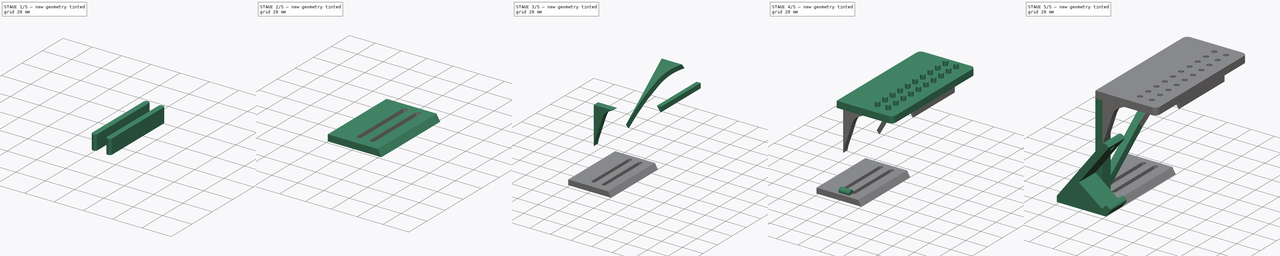
[diagram: build sequence overview — one tinted view per stage of 5, left to right]
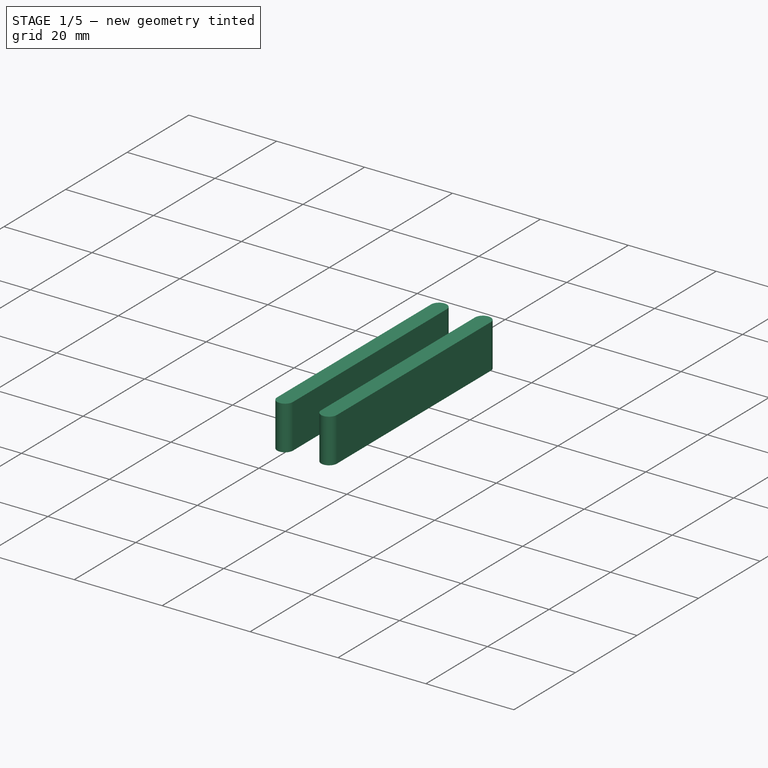
[diagram: stage 1 of 5 — iso view after this stage's code; geometry added in this stage tinted green]
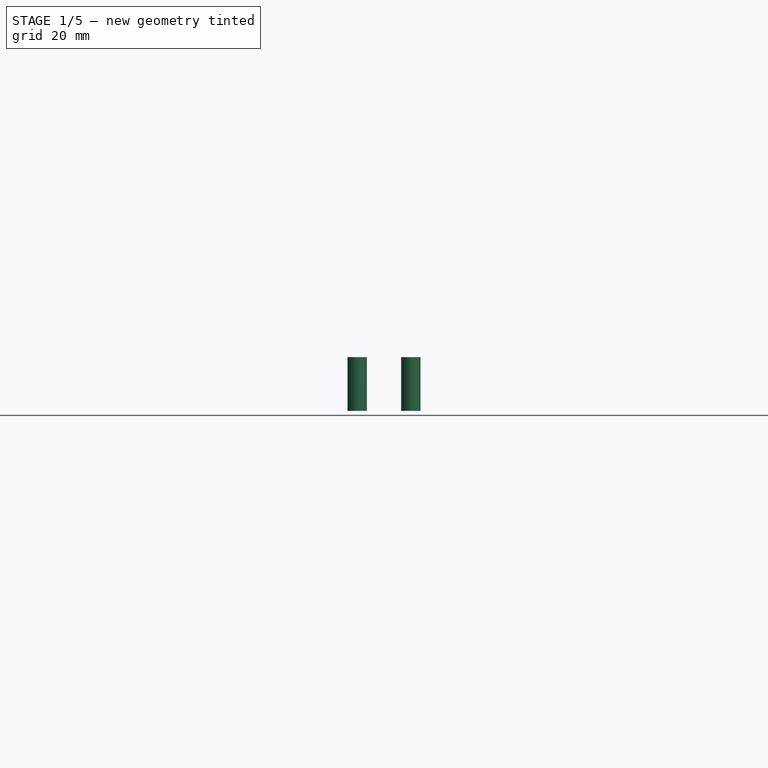
[diagram: stage 1 of 5 — front view after this stage's code; geometry added in this stage tinted green]
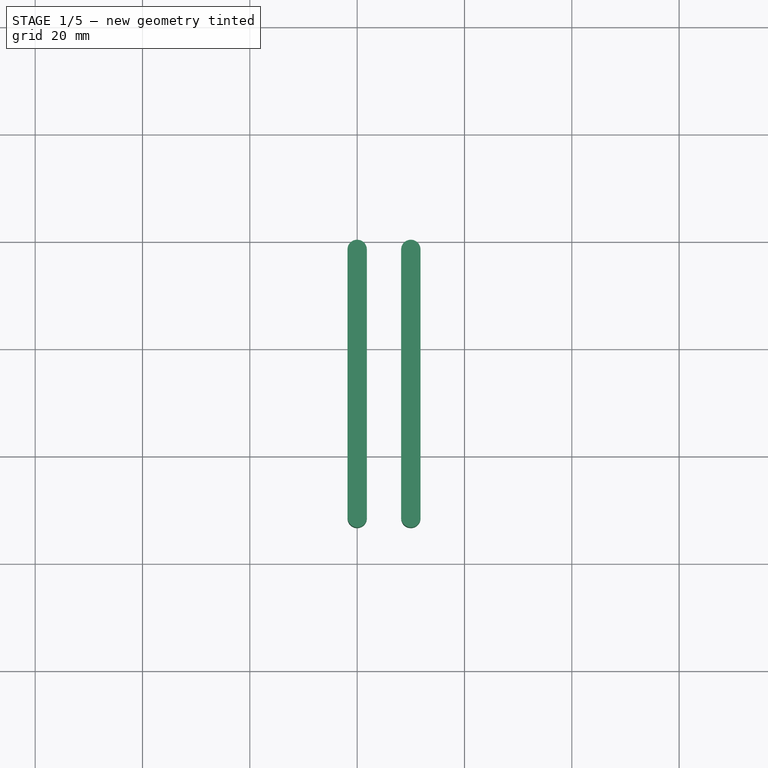
[diagram: stage 1 of 5 — top view after this stage's code; geometry added in this stage tinted green]
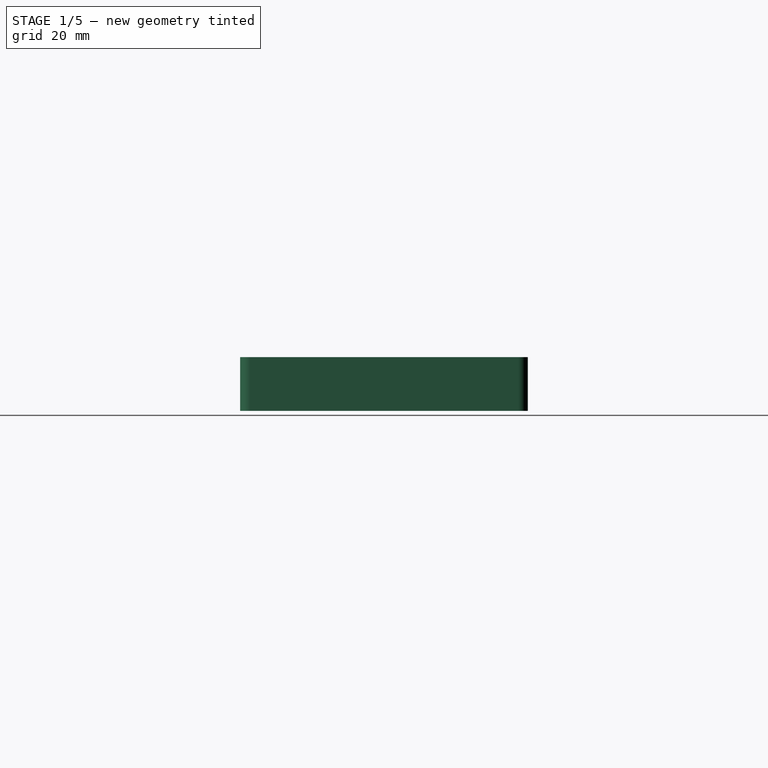
[diagram: stage 1 of 5 — right view after this stage's code; geometry added in this stage tinted green]
FCSTD DOCUMENT  (FreeCAD 0.20R29410 (Git))
Label: vesa_lamp_holder
License: All rights reserved
LicenseURL: http://en.wikipedia.org/wiki/All_rights_reserved
objects: Sketcher::SketchObject×6, Part::Cylinder×5, Part::MultiFuse×5, Part::Extrusion×5, Part::Box×3, Part::Cut×3, Part::Fillet×2, Part::FeaturePython×2, Spreadsheet::Sheet×1, PartDesign::Pad×1, App::Part×1
note: 31 computed .brp shape members not serialized (recipe doc carries the construction recipe); baked Part::Feature solids carry a one-line shape summary decoded from their .brp

FEATURE [App::Part] Part  label="vesa body"
  Group = -> [Cut001]
  Origin = -> Origin
  Placement = pos=(-21.6897,0,-82.381) rot=(0,1,0;6.17847rad)
FEATURE [Part::Cylinder] Cylinder003  label="Cylinder"
  Angle = 360
  AttacherType = Attacher::AttachEngine3D
  FirstAngle = 0
  Height = 10
  Radius = 1.8
  SecondAngle = 0
FEATURE [Part::Cylinder] Cylinder004
  Angle = 360
  AttacherType = Attacher::AttachEngine3D
  FirstAngle = 0
  Height = 10
  Placement = pos=(0,50,0) rot=(0,0,1;0rad)
  Radius = 1.8
  SecondAngle = 0
FEATURE [Part::Box] Box003  label="Cube"
  AttacherType = Attacher::AttachEngine3D
  Height = 10
  Length = 3.6
  Placement = pos=(-1.8,0,0) rot=(0,0,1;0rad)
  Width = 50
  expr: .Placement.Base.x = -Length / 2
FEATURE [Part::MultiFuse] Fusion004
  Shapes = -> [Cylinder003,Cylinder004,Box003]
FEATURE [Part::FeaturePython] Array001  # Draft array (typed FeaturePython)
  AlwaysSyncPlacement = false
  Angle = 360
  ArrayType = 0
  Axis = (0,0,1)
  Base = -> Fusion004
  Center = (0,0,0)
  Count = 2
  ExpandArray = false
  Fuse = false
  IntervalAxis = (0,0,0)
  IntervalX = (10,0,0)
  IntervalY = (0,100,0)
  IntervalZ = (0,0,100)
  NumberCircles = 3
  NumberPolar = 5
  NumberX = 2
  NumberY = 1
  NumberZ = 1
  Placement = pos=(0,8.5,0) rot=(0,0,1;0rad)
  PlacementList = 2 placements: [(0,0,0),(10,0,0)]
  RadialDistance = 50
  ScaleList = (2) [(1,1,1),(1,1,1)]
  Symmetry = 1
  TangentialDistance = 25
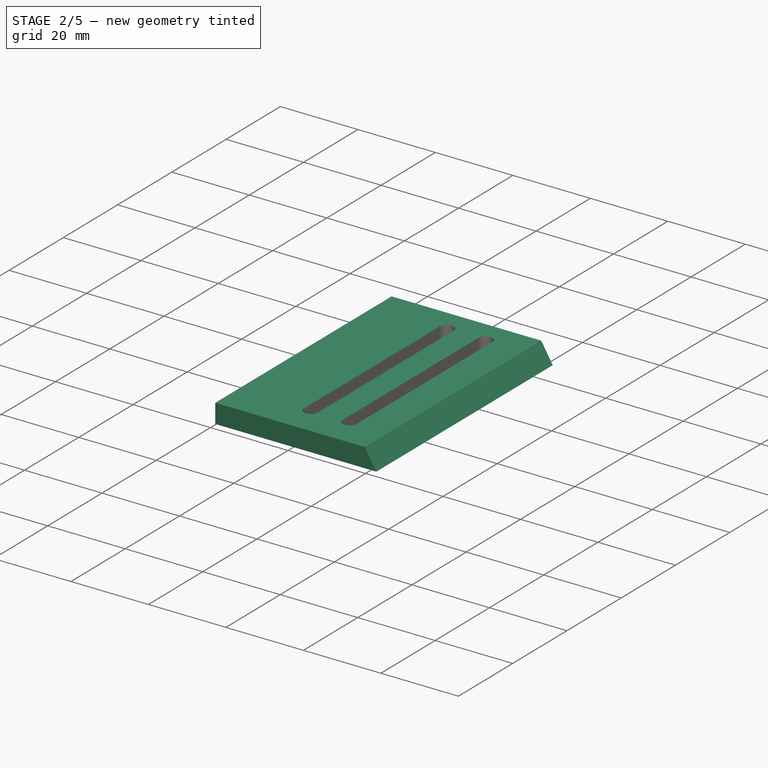
[diagram: stage 2 of 5 — iso view after this stage's code; geometry added in this stage tinted green]
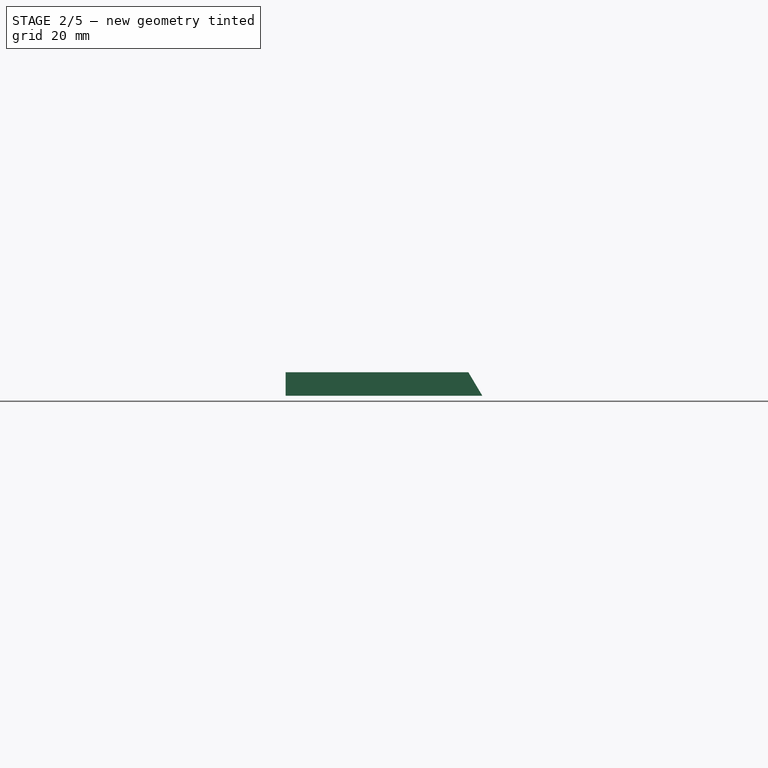
[diagram: stage 2 of 5 — front view after this stage's code; geometry added in this stage tinted green]
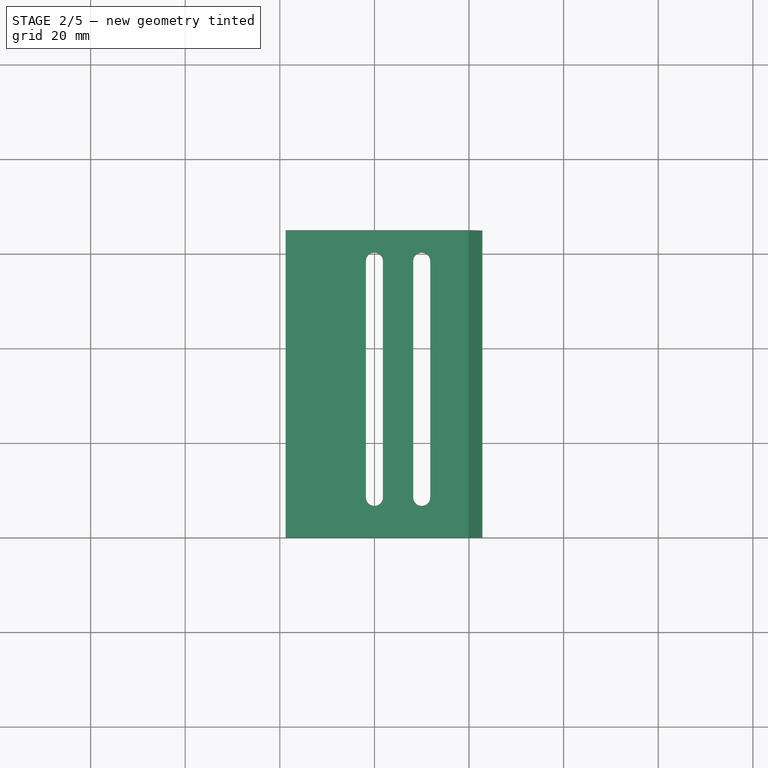
[diagram: stage 2 of 5 — top view after this stage's code; geometry added in this stage tinted green]
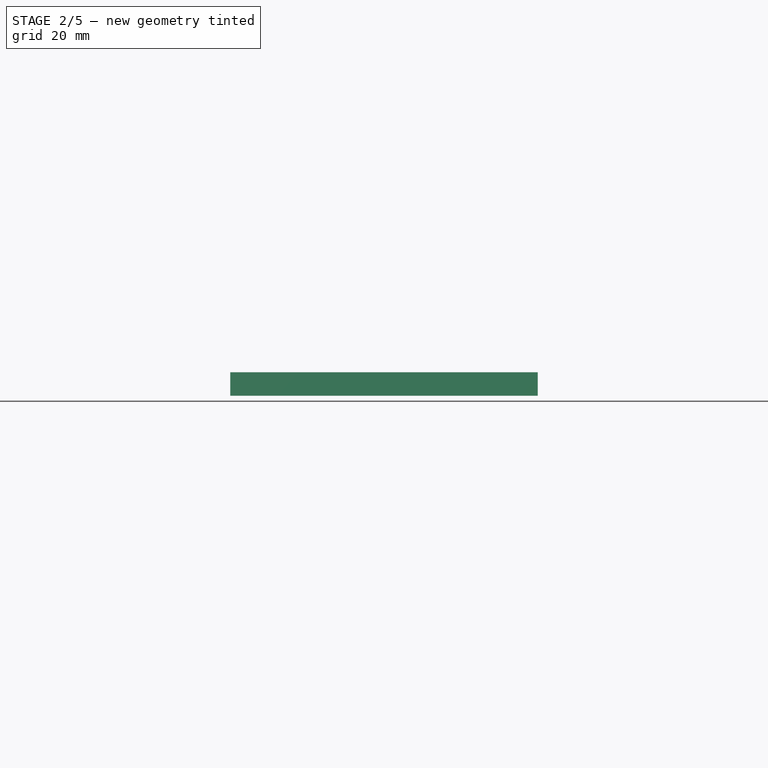
[diagram: stage 2 of 5 — right view after this stage's code; geometry added in this stage tinted green]
FEATURE [Sketcher::SketchObject] Sketch005
  FullyConstrained = false
  MapMode = 5
  Placement = pos=(0,0,0) rot=(1,0,0;1.5708rad)
  sketch-geometry (12):
    g0: LineSegment StartX=-18.7595 StartY=0 StartZ=0 EndX=22.81 EndY=0 EndZ=0
    g1: LineSegment StartX=-18.7595 StartY=0 StartZ=0 EndX=-18.7595 EndY=4.84 EndZ=0
    g2: LineSegment StartX=-18.7595 StartY=4.84 StartZ=0 EndX=19.2262 EndY=54.5232 EndZ=0
    g3: LineSegment StartX=25.5098 StartY=53.4954 StartZ=0 EndX=23.4315 EndY=55.0844 EndZ=0
    g4: LineSegment StartX=19.8604 StartY=4.9456 StartZ=0 EndX=0 EndY=20.13 EndZ=0
    g5: LineSegment StartX=0 StartY=20.13 StartZ=0 EndX=25.5098 EndY=53.4954 EndZ=0
    g6: ArcOfCircle CenterX=21.6094 CenterY=52.7011 CenterZ=0 NormalX=0 NormalY=0 NormalZ=1 AngleXU=0 Radius=3 StartAngle=0.918043 EndAngle=2.48884
    g7: LineSegment StartX=22.81 StartY=0 StartZ=0 EndX=26.1598 EndY=4.38135 EndZ=0
    g8: LineSegment StartX=25.8065 StartY=7.02912 StartZ=0 EndX=24.5598 EndY=7.98234 EndZ=0
    g9: ArcOfCircle CenterX=24.6593 CenterY=5.52859 CenterZ=0 NormalX=0 NormalY=0 NormalZ=1 AngleXU=0 Radius=1.88885 StartAngle=5.63043 EndAngle=7.20123
    g10: ArcOfCircle CenterX=23.4125 CenterY=6.48181 CenterZ=0 NormalX=0 NormalY=0 NormalZ=1 AngleXU=0 Radius=1.88885 StartAngle=0.918043 EndAngle=2.48884
    g11: LineSegment StartX=19.8604 StartY=4.9456 StartZ=0 EndX=21.912 EndY=7.62905 EndZ=0
  constraints (29):
    c: Vertical(g1)
    c: Coincident(g2,g1)
    c: PointOnObject(g4,g-2)
    c: Coincident(g5,g4)
    c: Coincident(g3,g5)
    c: Distance(g5) = 42
    c: Angle(g4,g5) = 1.5708
    c: Parallel(g2,g5)
    c: Angle(g2,g3) = 1.5708
    c: Tangent(g2,g6) = 1.5708
    c: Tangent(g3,g6) = -1.5708
    c: Radius(g6) = 3
    c: DistanceY(g-1,g1) = 4.84
    c: Coincident(g0,g1)
    c: Coincident(g7,g0)
    c: Tangent(g8,g9) = -1.5708
    c: Tangent(g7,g9) = -1.5708
    c: Tangent(g8,g10) = -1.5708
    c: Equal(g9,g10)
    c: PointOnObject(g0,g-1)
    c: Horizontal(g0)
    c: Angle(g-2,g4) = 0.918043
    c: Distance(g4) = 25
    c: DistanceY(g-1,g4) = 20.13
    c: Coincident(g11,g4)
    c: Parallel(g7,g11)
    c: Angle(g11,g4) = 1.5708
    c: Tangent(g11,g10) = 1.5708
    c: Angle(g11,g8) = 1.5708
FEATURE [PartDesign::Pad] Pad
  Direction = (0,-1,2e-16)
  Length = 20
  Length2 = 100
  Placement = pos=(0,0,0) rot=(1,0,0;1.5708rad)
  Profile = -> Sketch005
  Type = 0
FEATURE [Part::Cylinder] Cylinder002  label="insert hole"
  Angle = 360
  AttacherType = Attacher::AttachEngine3D
  FirstAngle = 0
  Height = 20
  Placement = pos=(10.5,-10,56.79) rot=(0,1,0;2.22756rad)
  Radius = 2.2
  SecondAngle = 0
FEATURE [Part::Cut] Cut  label="lamp attachment cut"
  Base = -> Pad
  Tool = -> Cylinder002
FEATURE [Sketcher::SketchObject] Sketch006
  ExternalGeometry = -> [Cut]
  FullyConstrained = true
  Placement = pos=(0,0,0) rot=(1,0,0;1.5708rad)
  sketch-geometry (4):
    g0: LineSegment StartX=-18.7595 StartY=2.7e-15 StartZ=0 EndX=22.81 EndY=2.2e-15 EndZ=0
    g1: LineSegment StartX=22.81 StartY=2.2e-15 StartZ=0 EndX=19.8604 EndY=4.9456 EndZ=0
    g2: LineSegment StartX=19.8604 StartY=4.9456 StartZ=0 EndX=-18.7595 EndY=4.9456 EndZ=0
    g3: LineSegment StartX=-18.7595 StartY=4.9456 StartZ=0 EndX=-18.7595 EndY=2.7e-15 EndZ=0
  constraints (9):
    c: Coincident(g0,g-4)
    c: Coincident(g0,g-4)
    c: Coincident(g1,g0)
    c: Coincident(g1,g-5)
    c: Coincident(g2,g1)
    c: PointOnObject(g2,g-3)
    c: Parallel(g2,g0)
    c: Coincident(g3,g2)
    c: Coincident(g3,g0)
FEATURE [Part::Extrusion] Extrude005
  Base = -> Sketch006
  Dir = (0,-1,2e-16)
  DirMode = 2
  FaceMakerClass = Part::FaceMakerBullseye
  LengthFwd = 65
  LengthRev = 0
  Reversed = true
  Solid = true
  Symmetric = false
FEATURE [Part::Cut] Cut002
  Base = -> Extrude005
  Tool = -> Array001
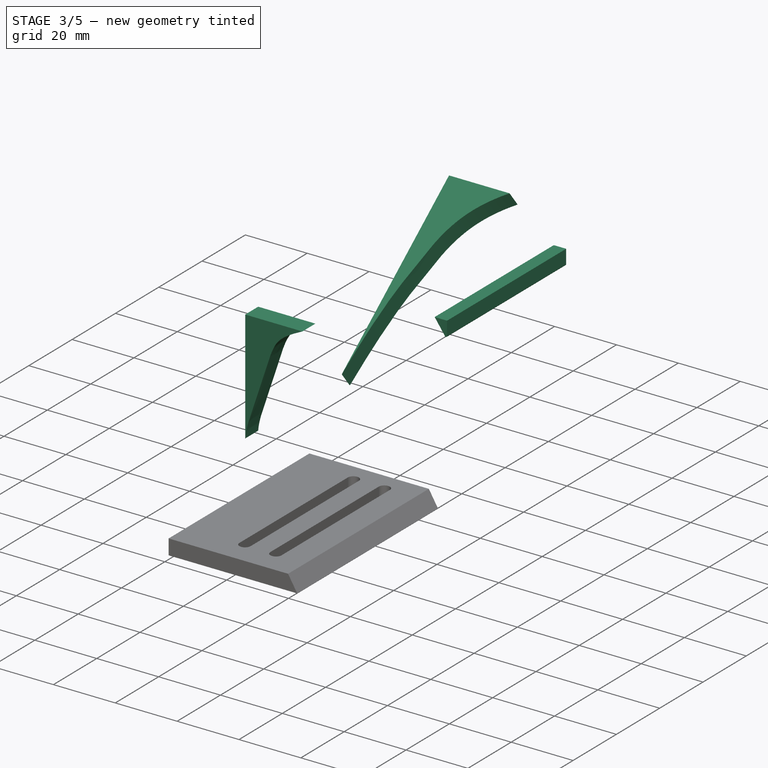
[diagram: stage 3 of 5 — iso view after this stage's code; geometry added in this stage tinted green]
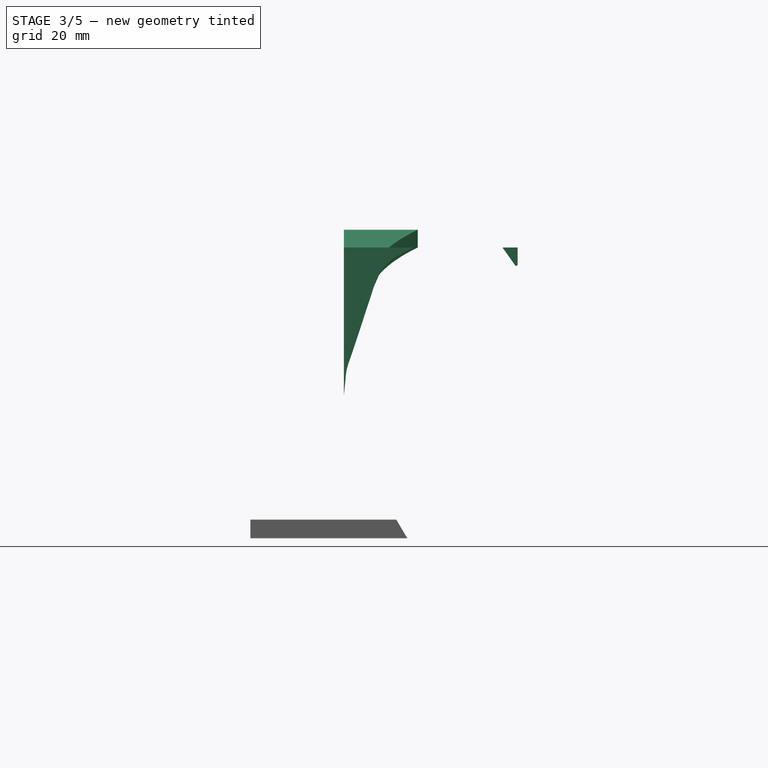
[diagram: stage 3 of 5 — front view after this stage's code; geometry added in this stage tinted green]
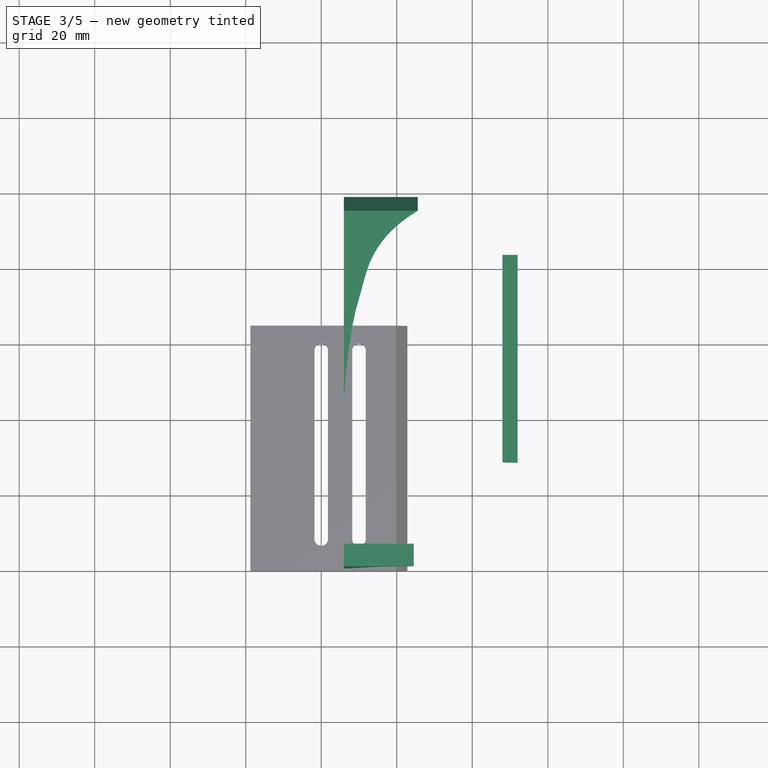
[diagram: stage 3 of 5 — top view after this stage's code; geometry added in this stage tinted green]
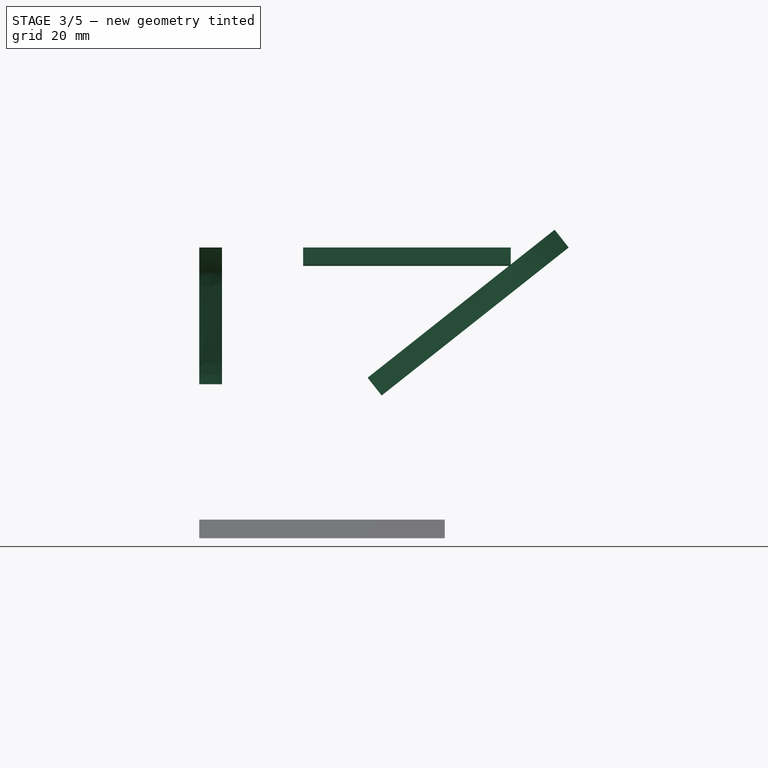
[diagram: stage 3 of 5 — right view after this stage's code; geometry added in this stage tinted green]
FEATURE [Part::Box] Box  label="vert cube"
  AttacherType = Attacher::AttachEngine3D
  Height = 77
  Length = 6
  Width = 10
  expr: Height = <<p>>.vert_cube_height
  expr: Length = <<p>>.wall
FEATURE [Part::Box] Box002  label="top cube"
  AttacherType = Attacher::AttachEngine3D
  Height = 6
  Length = 52
  Placement = pos=(0,0,77) rot=(0,0,1;0rad)
  Width = 110
  expr: .Placement.Base.z = <<vert cube>>.Height
  expr: Height = <<p>>.wall
FEATURE [Sketcher::SketchObject] Sketch002
  ExternalGeometry = -> [Box,Box002]
  FullyConstrained = false
  MapMode = 5
  Placement = pos=(0,0,0) rot=(1,0,0;1.5708rad)
  Support = -> [Box]
  sketch-geometry (15):
    g0: LineSegment StartX=6 StartY=77 StartZ=0 EndX=6 EndY=40.7842 EndZ=0
    g1: LineSegment StartX=6 StartY=77 StartZ=0 EndX=24.4918 EndY=77 EndZ=0
    g2-g8: Circle x7 (B-spline internal-alignment scaffolding for g9; pole/knot coordinates omitted)
    g9: BSplineCurve PolesCount=7 KnotsCount=5 Degree=3 IsPeriodic=0
    g10-g14: GeomPoint x5 (B-spline internal-alignment scaffolding for g9; pole/knot coordinates omitted)
  constraints (10):
    c: Coincident(g0,g-3)
    c: PointOnObject(g0,g-3)
    c: Coincident(g1,g0)
    c: PointOnObject(g1,g-4)
    c: Weight(g2) = 1
    c: Coincident(g9,g1)
    c: Equal(g2, g3-g8) x6
    c: Coincident(g9,g0)
    c: InternalAlignment(g2-g8 -> g9) x7
    c: InternalAlignment(g10-g14 -> g9) x5
FEATURE [Part::Extrusion] Extrude002
  Base = -> Sketch002
  Dir = (0,-1,2e-16)
  DirMode = 2
  FaceMakerClass = Part::FaceMakerBullseye
  LengthFwd = 6
  LengthRev = 0
  Reversed = true
  Solid = true
  Symmetric = false
  expr: LengthFwd = <<p>>.wall
FEATURE [Sketcher::SketchObject] Sketch
  ExternalGeometry = -> [Box,Box002]
  FullyConstrained = false
  Placement = pos=(0,0,0) rot=(0.57735,0.57735,0.57735;2.0944rad)
  sketch-geometry (4):
    g0: LineSegment StartX=10 StartY=7.50617 StartZ=0 EndX=97.8372 EndY=77 EndZ=0
    g1: LineSegment StartX=10 StartY=15.4178 StartZ=0 EndX=87.8372 EndY=77 EndZ=0
    g2: LineSegment StartX=87.8372 StartY=77 StartZ=0 EndX=97.8372 EndY=77 EndZ=0
    g3: LineSegment StartX=10 StartY=7.50617 StartZ=0 EndX=10 EndY=15.4178 EndZ=0
  constraints (10):
    c: PointOnObject(g0,g-3)
    c: PointOnObject(g0,g-4)
    c: PointOnObject(g1,g-3)
    c: PointOnObject(g1,g-4)
    c: Parallel(g0,g1)
    c: Coincident(g2,g1)
    c: Coincident(g2,g0)
    c: Coincident(g3,g0)
    c: Coincident(g3,g1)
    c: DistanceX(g2,g2) = 10
FEATURE [Part::Extrusion] Extrude
  Base = -> Sketch
  Dir = (1,0,0)
  DirMode = 2
  FaceMakerClass = Part::FaceMakerBullseye
  LengthFwd = 6
  LengthRev = 0
  Solid = true
  Symmetric = false
  expr: LengthFwd = <<p>>.wall
FEATURE [Sketcher::SketchObject] Sketch003
  ExternalGeometry = -> [Extrude,Box002]
  FullyConstrained = false
  Placement = pos=(2e-15,0.111137,-0.31757) rot=(1,0,0;3.81092rad)
  sketch-geometry (13):
    g0: LineSegment StartX=6 StartY=-124.613 StartZ=0 EndX=25.5709 EndY=-124.613 EndZ=0
    g1: LineSegment StartX=6 StartY=-124.613 StartZ=0 EndX=6 EndY=-61.4427 EndZ=0
    g2-g7: Circle x6 (B-spline internal-alignment scaffolding for g8; pole/knot coordinates omitted)
    g8: BSplineCurve PolesCount=6 KnotsCount=4 Degree=3 IsPeriodic=0
    g9-g12: GeomPoint x4 (B-spline internal-alignment scaffolding for g8; pole/knot coordinates omitted)
  constraints (10):
    c: Horizontal(g0)
    c: Coincident(g1,g0)
    c: Weight(g2) = 1
    c: Coincident(g8,g0)
    c: Equal(g2, g3-g7) x5
    c: Coincident(g8,g1)
    c: InternalAlignment(g2-g7 -> g8) x6
    c: InternalAlignment(g9-g12 -> g8) x4
    c: Coincident(g0,g-3)
    c: PointOnObject(g1,g-3)
FEATURE [Part::Extrusion] Extrude003
  Base = -> Sketch003
  Dir = (0,0.620462,-0.784237)
  DirMode = 2
  FaceMakerClass = Part::FaceMakerBullseye
  LengthFwd = 6
  LengthRev = 0
  Reversed = true
  Solid = true
  Symmetric = false
  expr: LengthFwd = <<p>>.wall
FEATURE [Sketcher::SketchObject] Sketch004
  ExternalGeometry = -> [Box002]
  FullyConstrained = false
  Placement = pos=(0,55,0) rot=(1,0,0;1.5708rad)
  expr: .Placement.Base.y = <<top cube>>.Width / 2
  sketch-geometry (4):
    g0: LineSegment StartX=52 StartY=77 StartZ=0 EndX=52 EndY=72.5 EndZ=0
    g1: LineSegment StartX=48 StartY=77 StartZ=0 EndX=52 EndY=77 EndZ=0
    g2: LineSegment StartX=48 StartY=77 StartZ=0 EndX=51.3457 EndY=72.2912 EndZ=0
    g3: ArcOfCircle CenterX=51.6395 CenterY=72.5 CenterZ=0 NormalX=0 NormalY=0 NormalZ=1 AngleXU=0 Radius=0.36048 StartAngle=3.75934 EndAngle=6.28319
  constraints (9):
    c: Vertical(g0)
    c: Coincident(g1,g0)
    c: PointOnObject(g1,g-3)
    c: Coincident(g0,g-3)
    c: Coincident(g2,g1)
    c: Tangent(g3,g2) = -1.5708
    c: Tangent(g3,g0) = 1.5708
    c: DistanceX(g1,g1) = 4
    c: DistanceY(g0,g0) = 4.5
FEATURE [Part::Extrusion] Extrude004
  Base = -> Sketch004
  Dir = (0,-1,-3e-16)
  DirMode = 2
  FaceMakerClass = Part::FaceMakerBullseye
  LengthFwd = 55
  LengthRev = 0
  Solid = true
  Symmetric = true
  expr: LengthFwd = <<top cube>>.Width / 2
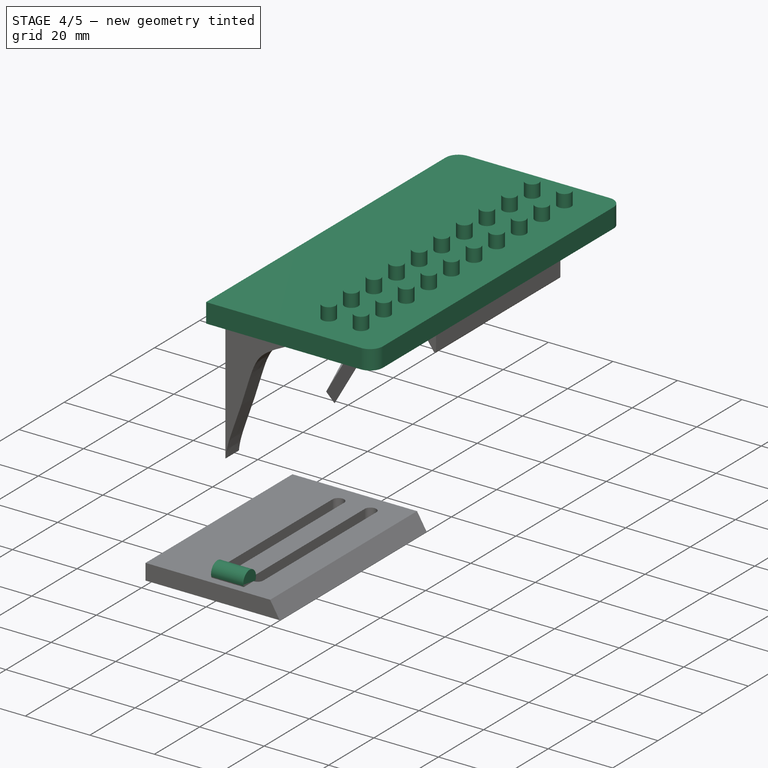
[diagram: stage 4 of 5 — iso view after this stage's code; geometry added in this stage tinted green]
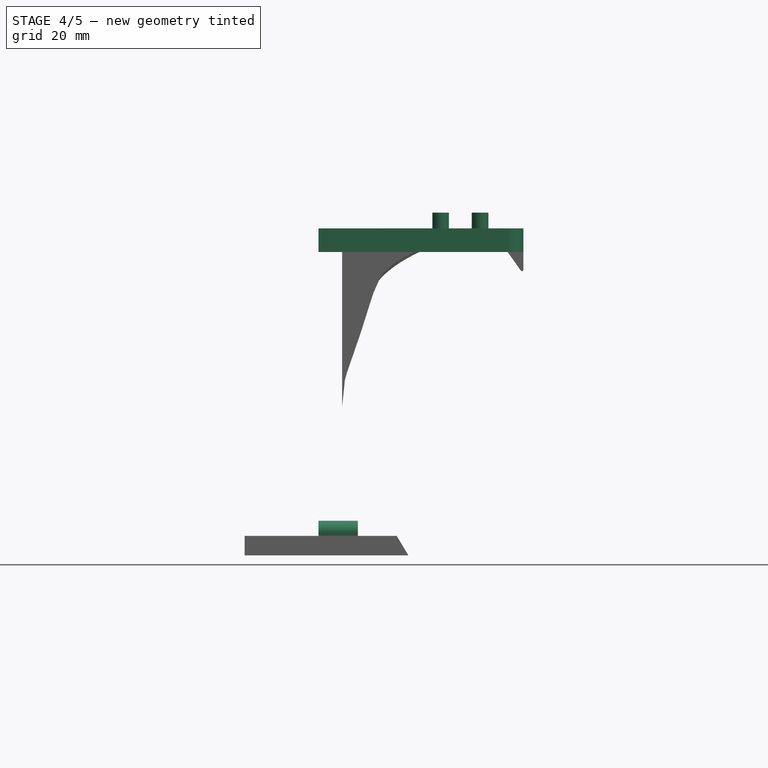
[diagram: stage 4 of 5 — front view after this stage's code; geometry added in this stage tinted green]
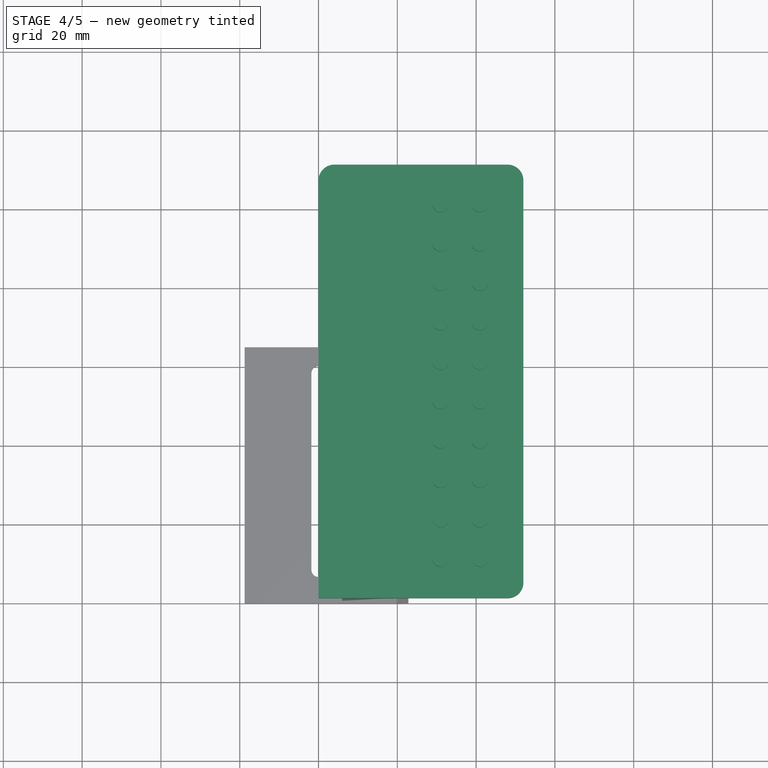
[diagram: stage 4 of 5 — top view after this stage's code; geometry added in this stage tinted green]
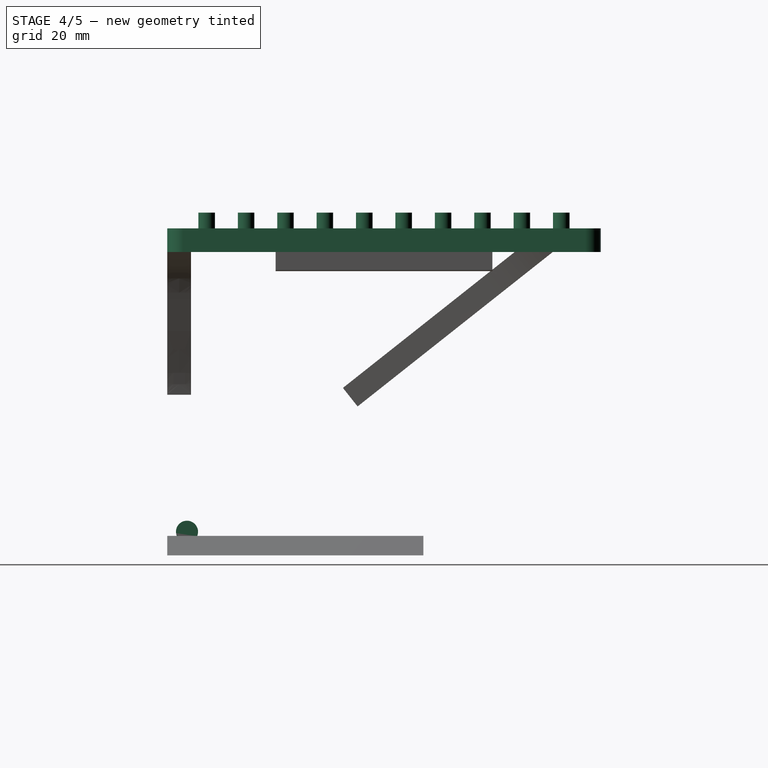
[diagram: stage 4 of 5 — right view after this stage's code; geometry added in this stage tinted green]
FEATURE [Spreadsheet::Sheet] Spreadsheet  label="p"
  cells = A1=wall; B1(wall)==6mm; A2=hole_top_dist; B2(hole_top_dist)==71mm; A3=vert_cube_height; B3(vert_cube_height)==hole_top_dist + 6mm
FEATURE [Part::Cylinder] Cylinder  label="vesa hole"
  Angle = 360
  AttacherType = Attacher::AttachEngine3D
  FirstAngle = 0
  Height = 10
  Placement = pos=(0,5,6) rot=(0,1,0;1.5708rad)
  Radius = 2.8
  SecondAngle = 0
  expr: .Placement.Base.y = <<vert cube>>.Width / 2
  expr: .Placement.Base.z = <<p>>.vert_cube_height - <<p>>.hole_top_dist
FEATURE [Part::Fillet] Fillet001  label="top cube fillet"
  Base = -> Box002
  Edges = 3 edges r=4: [Edge3,Edge5,Edge7]
FEATURE [Part::Cylinder] Cylinder001  label="top hole"
  Angle = 360
  AttacherType = Attacher::AttachEngine3D
  FirstAngle = 0
  Height = 10
  Placement = pos=(31,100,77) rot=(0,0,1;0rad)
  Radius = 2.1
  SecondAngle = 0
  expr: .Placement.Base.x = <<top cube>>.Length - 21mm
  expr: .Placement.Base.y = <<top cube>>.Width - 10mm
  expr: .Placement.Base.z = <<p>>.vert_cube_height
FEATURE [Part::FeaturePython] Array  label="top hole array"  # Draft array (typed FeaturePython)
  AlwaysSyncPlacement = false
  Angle = 360
  ArrayType = 0
  Axis = (0,0,1)
  Base = -> Cylinder001
  Center = (0,0,0)
  Count = 20
  ExpandArray = false
  Fuse = false
  IntervalAxis = (0,0,0)
  IntervalX = (10,0,0)
  IntervalY = (0,-10,0)
  IntervalZ = (0,0,100)
  NumberCircles = 3
  NumberPolar = 5
  NumberX = 2
  NumberY = 10
  NumberZ = 1
  PlacementList = 20 placements: [(31,100,77),(31,90,77),(31,80,77),(31,70,77),(31,60,77),(31,50,77),(31,40,77),(31,30,77),(31,20,77),(31,10,77),(41,100,77),(41,90,77),(41,80,77),(41,70,77),(41,60,77),(41,50,77),(41,40,77),(41,30,77),(41,20,77),(41,10,77)]
  RadialDistance = 50
  ScaleList = (20) [(1,1,1),(1,1,1),(1,1,1),(1,1,1),(1,1,1),(1,1,1),(1,1,1),(1,1,1),(1,1,1),(1,1,1),(1,1,1),(1,1,1),(1,1,1),(1,1,1),(1,1,1),(1,1,1),(1,1,1),(1,1,1),(1,1,1),(1,1,1)]
  Symmetry = 1
  TangentialDistance = 25
FEATURE [Part::MultiFuse] Fusion002  label="hole fusion"
  Shapes = -> [Array,Cylinder]
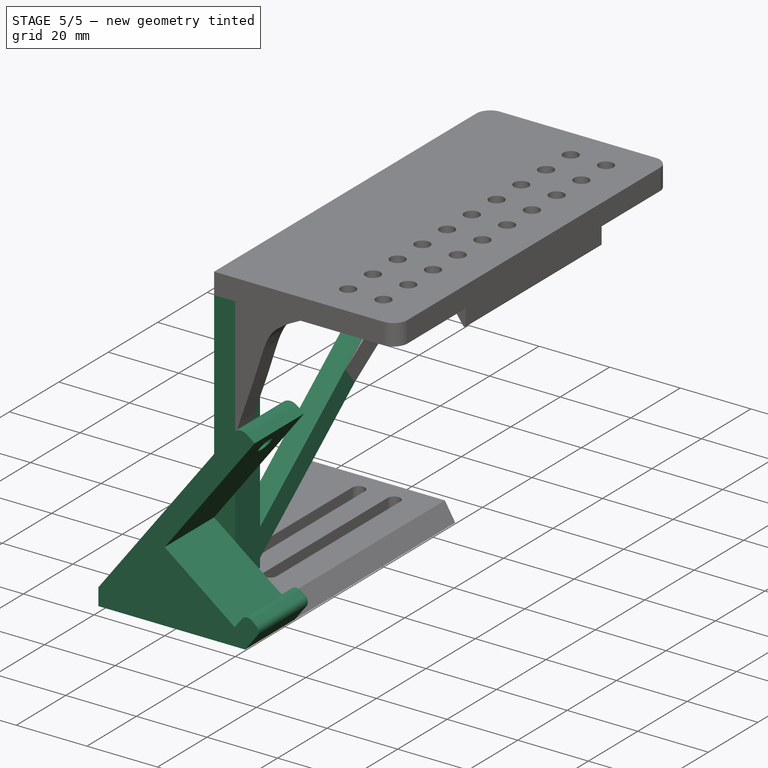
[diagram: stage 5 of 5 — iso view after this stage's code; geometry added in this stage tinted green]
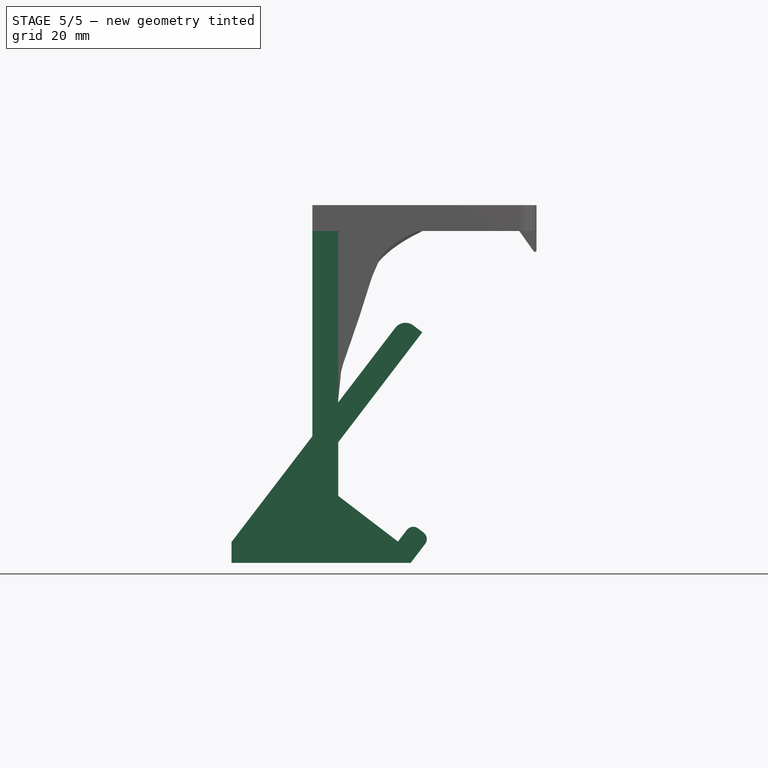
[diagram: stage 5 of 5 — front view after this stage's code; geometry added in this stage tinted green]
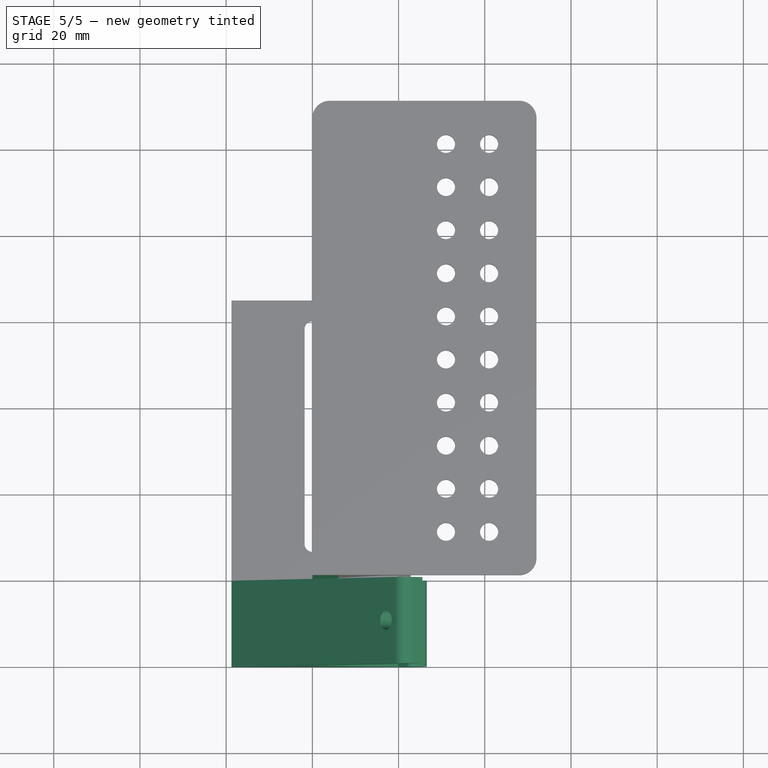
[diagram: stage 5 of 5 — top view after this stage's code; geometry added in this stage tinted green]
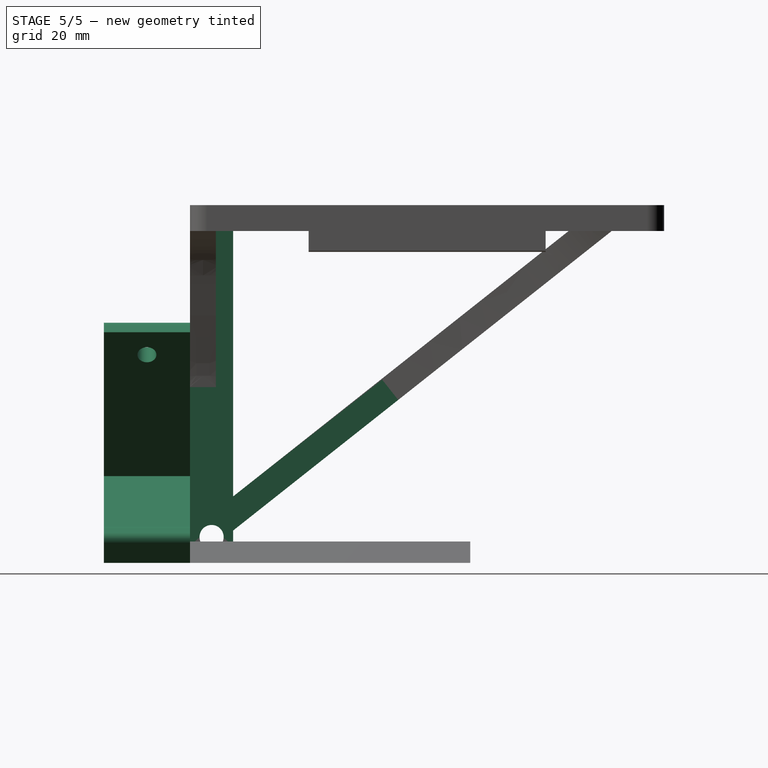
[diagram: stage 5 of 5 — right view after this stage's code; geometry added in this stage tinted green]
FEATURE [Part::Fillet] Fillet  label="vert cube fillet"
  Base = -> Box
  Edges = 2 edges r=4: [Edge9,Edge11]
FEATURE [Part::MultiFuse] Fusion  label="subbody fusion"
  Shapes = -> [Fillet,Fillet001]
FEATURE [Part::MultiFuse] Fusion001  label="body fusion"
  Shapes = -> [Fusion,Extrude002,Extrude,Extrude003,Extrude004]
FEATURE [Part::Cut] Cut001  label="body cut"
  Base = -> Fusion001
  Tool = -> Fusion002
FEATURE [Part::MultiFuse] Fusion003
  Shapes = -> [Cut,Cut002]
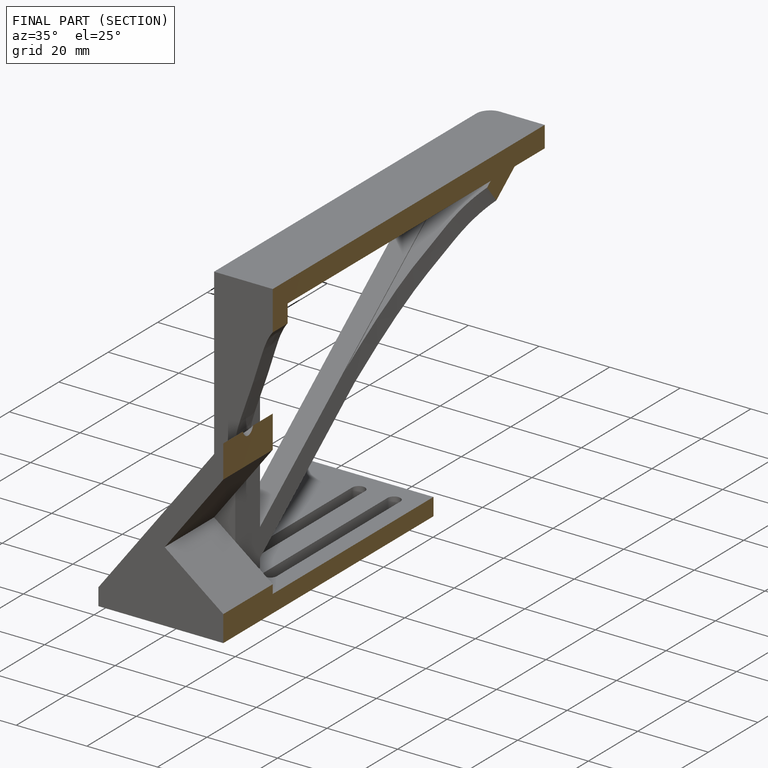
[diagram: finished part — half-section view (interior)]
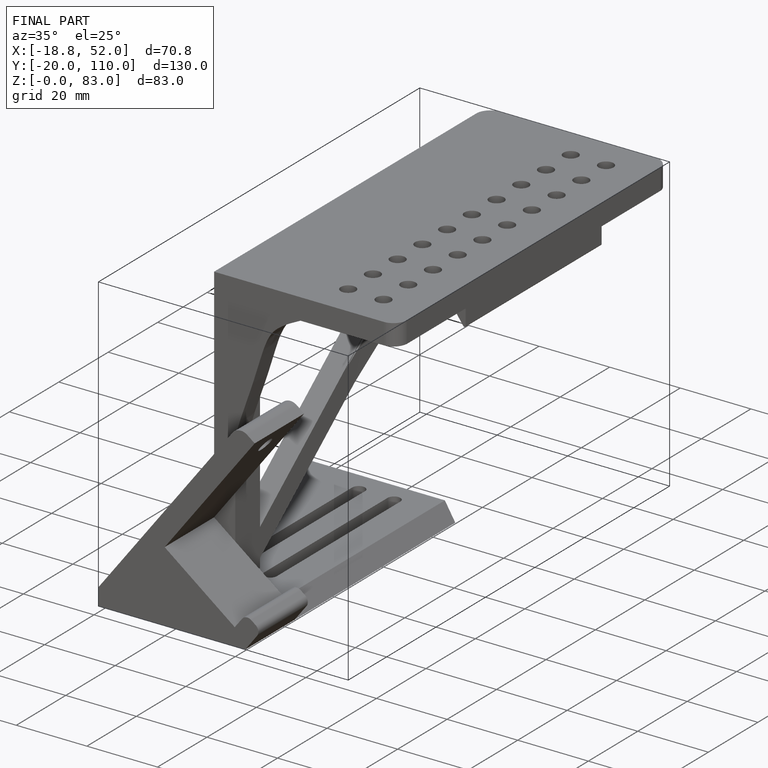
[diagram: finished part — iso view with bounding-box wireframe]
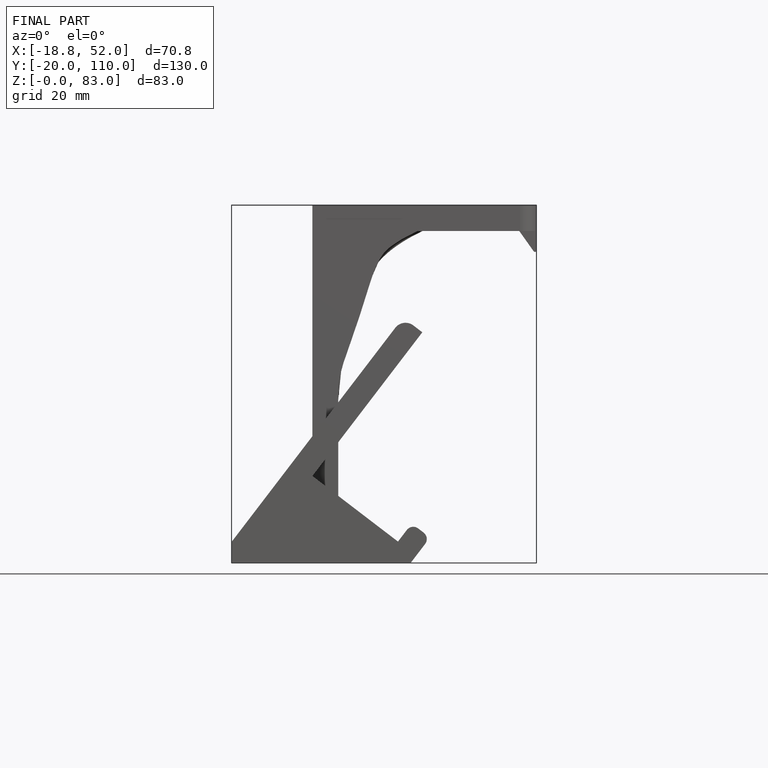
[diagram: finished part — front view with bounding-box wireframe]
